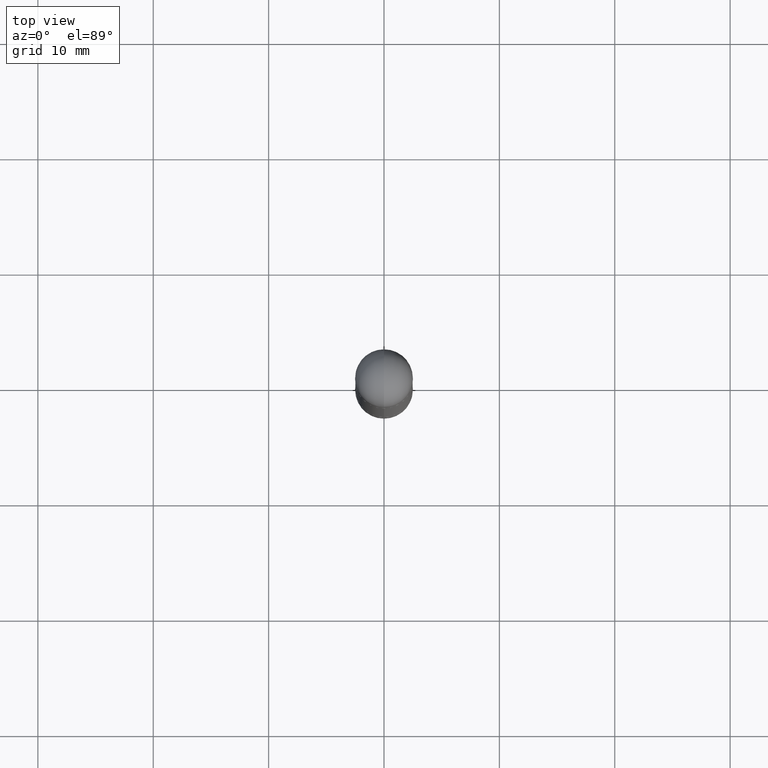
[diagram: clean part render]
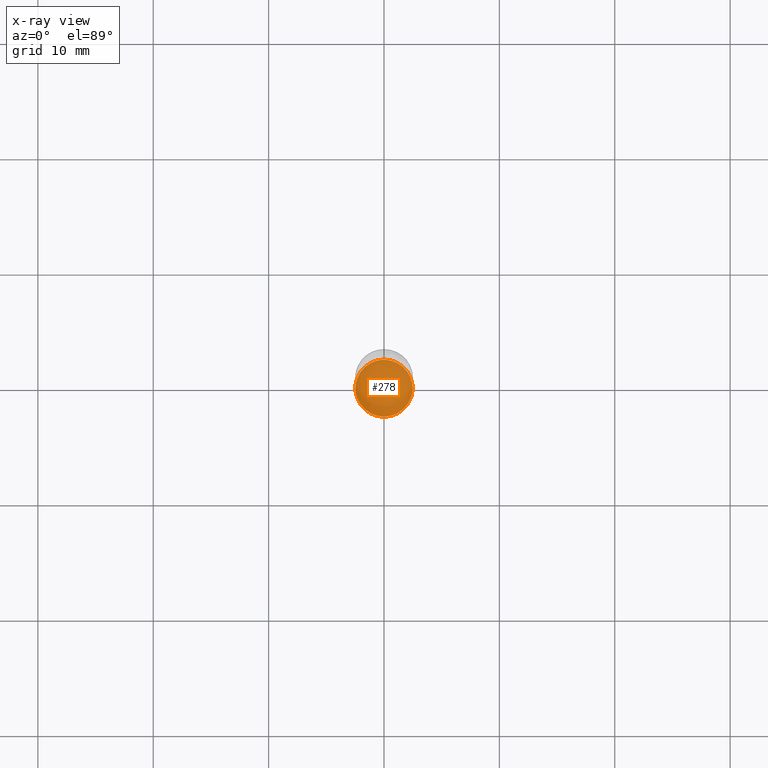
[diagram: x-ray — body ghosted, one internal face saturated and labeled with its STEP entity id]
A machine part, top view, then the same camera in x-ray: the body is ghosted and one INTERNAL B-rep face — a face not visible from any outside direction — is saturated and labeled: STEP entity #278.
In plain terms, the highlighted planar face has unit normal (-0, 0, 1).
Its self-contained STEP definition (entity closure, byte-faithful):
#2 = DIRECTION ( 'NONE',  ( -6.982962677686265922E-15, -1.000000000000000000, 3.490972175731946571E-15 ) ) ;
#20 = VERTEX_POINT ( 'NONE', #109 ) ;
#67 = CARTESIAN_POINT ( 'NONE',  ( 5.103457094730619215E-29, -7.284262541882279801E-15, -2.086600000000000232 ) ) ;
#99 = AXIS2_PLACEMENT_3D ( 'NONE', #388, #499, #2 ) ;
#102 = CARTESIAN_POINT ( 'NONE',  ( 5.103457094730619215E-29, -7.284262541882279801E-15, -2.086600000000000232 ) ) ;
#109 = CARTESIAN_POINT ( 'NONE',  ( 6.959766096770698684E-16, 0.09744999999999269524, -2.086600000000000676 ) ) ;
#113 = CIRCLE ( 'NONE', #722, 0.09744999999999999496 ) ;
#206 = AXIS2_PLACEMENT_3D ( 'NONE', #67, #681, #322 ) ;
#263 = EDGE_LOOP ( 'NONE', ( #640, #678 ) ) ;
#278 = ADVANCED_FACE ( 'NONE', ( #374 ), #438, .F. ) ;
#322 = DIRECTION ( 'NONE',  ( -6.982962677686266711E-15, -1.000000000000000000, 2.803332984776052637E-15 ) ) ;
#346 = EDGE_CURVE ( 'NONE', #20, #705, #422, .T. ) ;
#359 = DIRECTION ( 'NONE',  ( -2.445824352885372423E-29, 3.490972175731946571E-15, 1.000000000000000000 ) ) ;
#374 = FACE_OUTER_BOUND ( 'NONE', #263, .T. ) ;
#388 = CARTESIAN_POINT ( 'NONE',  ( 5.103457094730619215E-29, -7.284262541882279801E-15, -2.086600000000000232 ) ) ;
#422 = CIRCLE ( 'NONE', #206, 0.09744999999999999496 ) ;
#438 = PLANE ( 'NONE',  #99 ) ;
#499 = DIRECTION ( 'NONE',  ( -2.445824352885372142E-29, 3.490972175731946571E-15, 1.000000000000000000 ) ) ;
#594 = DIRECTION ( 'NONE',  ( -6.982962677686266711E-15, -1.000000000000000000, 2.803332984776052637E-15 ) ) ;
#602 = CARTESIAN_POINT ( 'NONE',  ( -6.804897129404755657E-16, -0.09745000000000728080, -2.086600000000000232 ) ) ;
#640 = ORIENTED_EDGE ( 'NONE', *, *, #664, .F. ) ;
#664 = EDGE_CURVE ( 'NONE', #705, #20, #113, .T. ) ;
#678 = ORIENTED_EDGE ( 'NONE', *, *, #346, .F. ) ;
#681 = DIRECTION ( 'NONE',  ( -2.445824352885372423E-29, 3.490972175731946571E-15, 1.000000000000000000 ) ) ;
#705 = VERTEX_POINT ( 'NONE', #602 ) ;
#722 = AXIS2_PLACEMENT_3D ( 'NONE', #102, #359, #594 ) ;